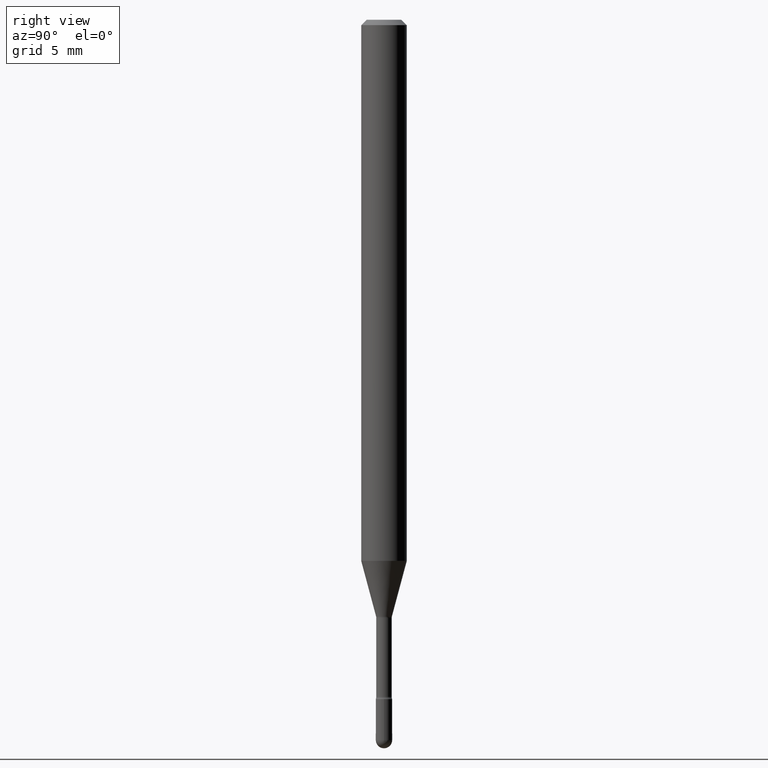
[diagram: clean part render]
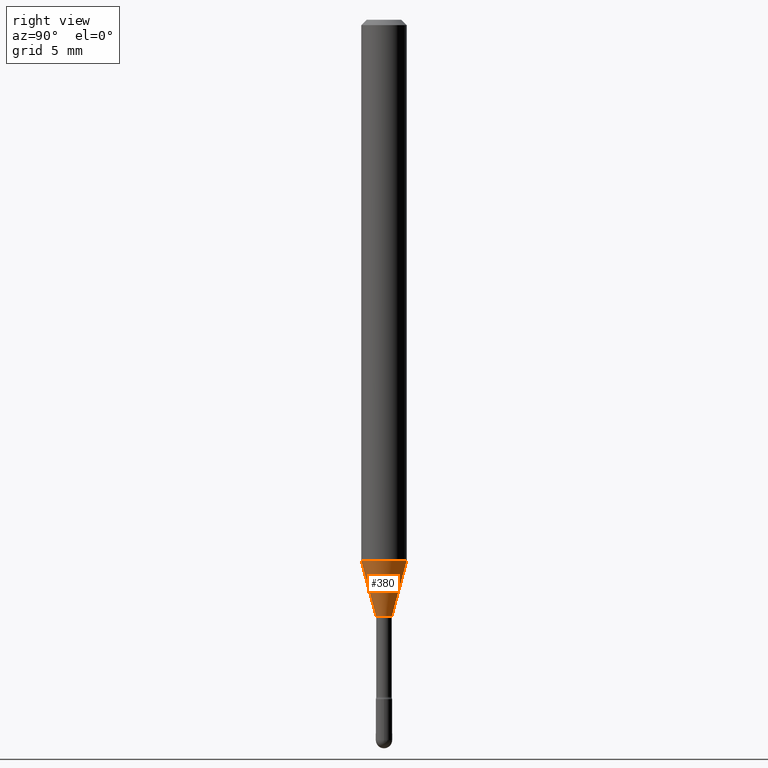
[diagram: same view with one face highlighted and labeled with its STEP entity id]
A machine part, right view. The second image highlights one B-rep face of the part: STEP entity #380.
In plain terms, the highlighted conical surface has half-angle 15 deg.
Its self-contained STEP definition (entity closure, byte-faithful):
#29 = VERTEX_POINT ( 'NONE', #551 ) ;
#37 = DIRECTION ( 'NONE',  ( -6.982962677686265922E-15, -1.000000000000000000, 0.000000000000000000 ) ) ;
#47 = VECTOR ( 'NONE', #534, 39.37007874015748854 ) ;
#51 = LINE ( 'NONE', #183, #47 ) ;
#57 = FACE_OUTER_BOUND ( 'NONE', #369, .T. ) ;
#68 = VERTEX_POINT ( 'NONE', #508 ) ;
#70 = CARTESIAN_POINT ( 'NONE',  ( 4.440892098500987066E-16, 0.06249999999999478889, -1.485679699107027352 ) ) ;
#109 = CONICAL_SURFACE ( 'NONE', #219, 0.02166111260566391111, 0.2617993877991491858 ) ;
#122 = VERTEX_POINT ( 'NONE', #70 ) ;
#139 = CIRCLE ( 'NONE', #257, 0.06250000000000000000 ) ;
#171 = LINE ( 'NONE', #343, #383 ) ;
#181 = EDGE_CURVE ( 'NONE', #29, #122, #171, .T. ) ;
#183 = CARTESIAN_POINT ( 'NONE',  ( -1.512587408824705389E-16, -0.02166111260566962876, -1.638092501787273614 ) ) ;
#219 = AXIS2_PLACEMENT_3D ( 'NONE', #225, #437, #351 ) ;
#225 = CARTESIAN_POINT ( 'NONE',  ( 4.005870706885846968E-29, -5.719417243275770016E-15, -1.638092501787273614 ) ) ;
#229 = DIRECTION ( 'NONE',  ( -2.445448411805292679E-29, 3.491510544755857914E-15, 1.000000000000000000 ) ) ;
#249 = DIRECTION ( 'NONE',  ( 1.839019923739592821E-15, 0.2588190451025239036, 0.9659258262890675351 ) ) ;
#257 = AXIS2_PLACEMENT_3D ( 'NONE', #312, #229, #356 ) ;
#258 = EDGE_CURVE ( 'NONE', #68, #29, #317, .T. ) ;
#312 = CARTESIAN_POINT ( 'NONE',  ( 3.633153060632644623E-29, -5.187266335561894822E-15, -1.485679699107027130 ) ) ;
#317 = CIRCLE ( 'NONE', #434, 0.02166111260566391111 ) ;
#324 = ORIENTED_EDGE ( 'NONE', *, *, #181, .T. ) ;
#334 = ORIENTED_EDGE ( 'NONE', *, *, #258, .T. ) ;
#338 = DIRECTION ( 'NONE',  ( -2.445448411805292679E-29, 3.491510544755857914E-15, 1.000000000000000000 ) ) ;
#343 = CARTESIAN_POINT ( 'NONE',  ( 1.539114621044003108E-16, 0.02166111260565818999, -1.638092501787273614 ) ) ;
#347 = CARTESIAN_POINT ( 'NONE',  ( 4.005870706885846968E-29, -5.719417243275770016E-15, -1.638092501787273614 ) ) ;
#351 = DIRECTION ( 'NONE',  ( -6.982962677686265922E-15, -1.000000000000000000, 0.000000000000000000 ) ) ;
#356 = DIRECTION ( 'NONE',  ( -6.982962677686265922E-15, -1.000000000000000000, 4.370956789862821150E-15 ) ) ;
#369 = EDGE_LOOP ( 'NONE', ( #334, #324, #493, #464 ) ) ;
#380 = ADVANCED_FACE ( 'NONE', ( #57 ), #109, .T. ) ;
#383 = VECTOR ( 'NONE', #249, 39.37007874015748854 ) ;
#386 = EDGE_CURVE ( 'NONE', #559, #122, #139, .T. ) ;
#393 = EDGE_CURVE ( 'NONE', #68, #559, #51, .T. ) ;
#434 = AXIS2_PLACEMENT_3D ( 'NONE', #347, #338, #37 ) ;
#437 = DIRECTION ( 'NONE',  ( -2.445448411805292679E-29, 3.491510544755857914E-15, 1.000000000000000000 ) ) ;
#464 = ORIENTED_EDGE ( 'NONE', *, *, #393, .F. ) ;
#487 = CARTESIAN_POINT ( 'NONE',  ( -4.364351673553553818E-16, -0.06250000000000520417, -1.485679699107026686 ) ) ;
#493 = ORIENTED_EDGE ( 'NONE', *, *, #386, .F. ) ;
#508 = CARTESIAN_POINT ( 'NONE',  ( -1.512587408824705389E-16, -0.02166111260566962876, -1.638092501787273614 ) ) ;
#534 = DIRECTION ( 'NONE',  ( -1.807323732225322645E-15, -0.2588190451025171313, 0.9659258262890693114 ) ) ;
#551 = CARTESIAN_POINT ( 'NONE',  ( 2.990003359772496319E-16, 0.02166111260565818999, -1.638092501787273614 ) ) ;
#559 = VERTEX_POINT ( 'NONE', #487 ) ;